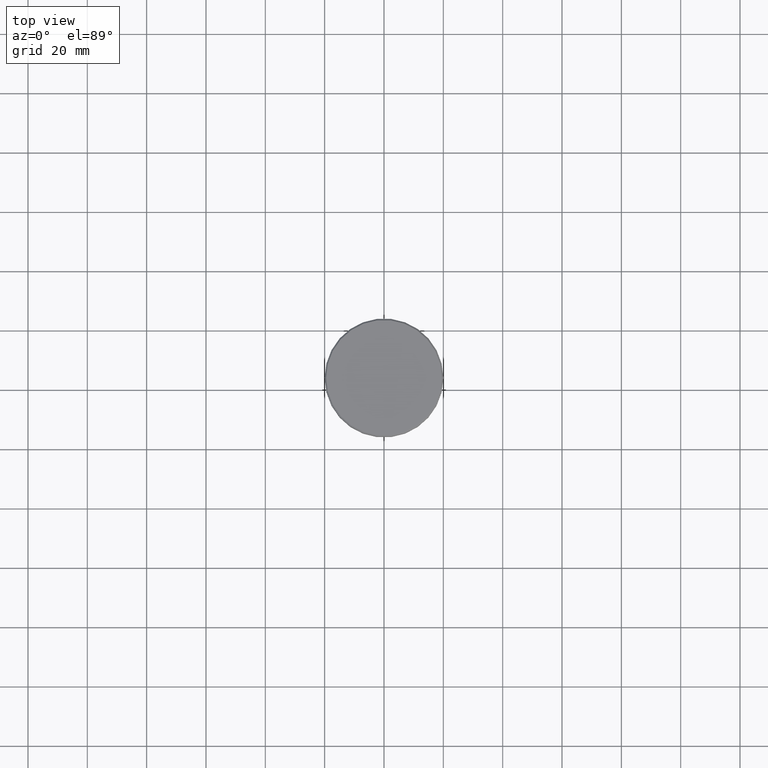
[diagram: clean part render]
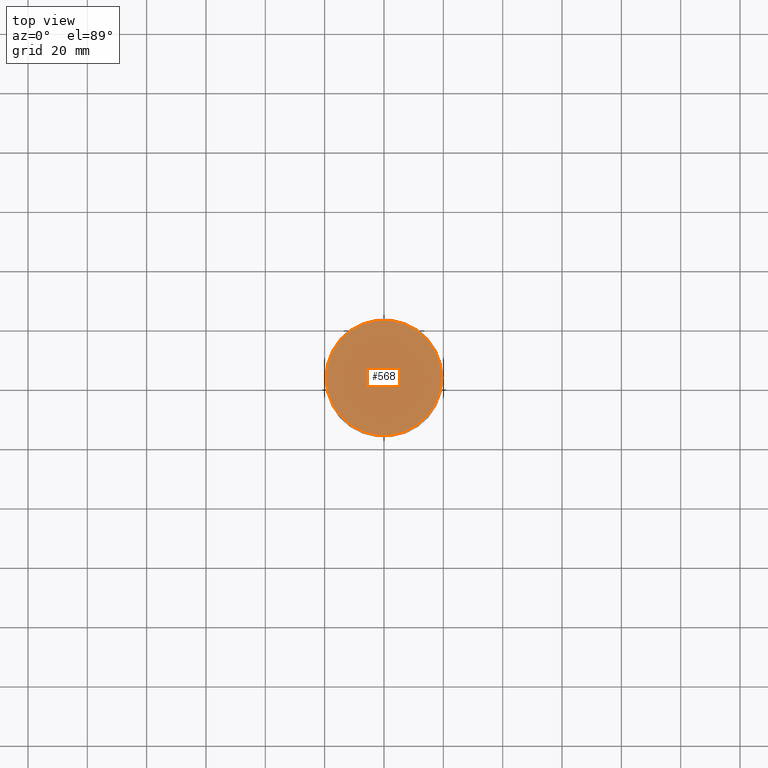
[diagram: same view with one face highlighted and labeled with its STEP entity id]
A machine part, top view. The second image highlights one B-rep face of the part: STEP entity #568.
In plain terms, the highlighted planar face has unit normal (0, -0, 1).
Its self-contained STEP definition (entity closure, byte-faithful):
#9 = ORIENTED_EDGE ( 'NONE', *, *, #271, .T. ) ;
#58 = EDGE_CURVE ( 'NONE', #102, #941, #250, .T. ) ;
#60 = DIRECTION ( 'NONE',  ( -0.000000000000000000, -0.000000000000000000, 1.000000000000000000 ) ) ;
#102 = VERTEX_POINT ( 'NONE', #528 ) ;
#192 = CIRCLE ( 'NONE', #978, 19.50000000000001776 ) ;
#213 = EDGE_LOOP ( 'NONE', ( #298, #9 ) ) ;
#220 = DIRECTION ( 'NONE',  ( 1.000000000000000000, 0.000000000000000000, 0.000000000000000000 ) ) ;
#250 = CIRCLE ( 'NONE', #363, 19.50000000000001776 ) ;
#271 = EDGE_CURVE ( 'NONE', #941, #102, #192, .T. ) ;
#298 = ORIENTED_EDGE ( 'NONE', *, *, #58, .T. ) ;
#327 = FACE_OUTER_BOUND ( 'NONE', #213, .T. ) ;
#340 = DIRECTION ( 'NONE',  ( 1.000000000000000000, 0.000000000000000000, 0.000000000000000000 ) ) ;
#363 = AXIS2_PLACEMENT_3D ( 'NONE', #876, #60, #220 ) ;
#429 = PLANE ( 'NONE',  #1170 ) ;
#528 = CARTESIAN_POINT ( 'NONE',  ( -19.50000000000001776, 0.000000000000000000, 0.000000000000000000 ) ) ;
#568 = ADVANCED_FACE ( 'NONE', ( #327 ), #429, .T. ) ;
#618 = CARTESIAN_POINT ( 'NONE',  ( 0.000000000000000000, 0.000000000000000000, 0.000000000000000000 ) ) ;
#876 = CARTESIAN_POINT ( 'NONE',  ( 0.000000000000000000, 0.000000000000000000, 0.000000000000000000 ) ) ;
#899 = DIRECTION ( 'NONE',  ( 1.000000000000000000, 0.000000000000000000, 0.000000000000000000 ) ) ;
#941 = VERTEX_POINT ( 'NONE', #1078 ) ;
#966 = DIRECTION ( 'NONE',  ( -0.000000000000000000, -0.000000000000000000, 1.000000000000000000 ) ) ;
#978 = AXIS2_PLACEMENT_3D ( 'NONE', #618, #966, #899 ) ;
#1078 = CARTESIAN_POINT ( 'NONE',  ( 19.50000000000001776, 2.418677428316023515E-15, 0.000000000000000000 ) ) ;
#1160 = CARTESIAN_POINT ( 'NONE',  ( 0.000000000000000000, 0.000000000000000000, 0.000000000000000000 ) ) ;
#1165 = DIRECTION ( 'NONE',  ( 0.000000000000000000, -0.000000000000000000, 1.000000000000000000 ) ) ;
#1170 = AXIS2_PLACEMENT_3D ( 'NONE', #1160, #1165, #340 ) ;